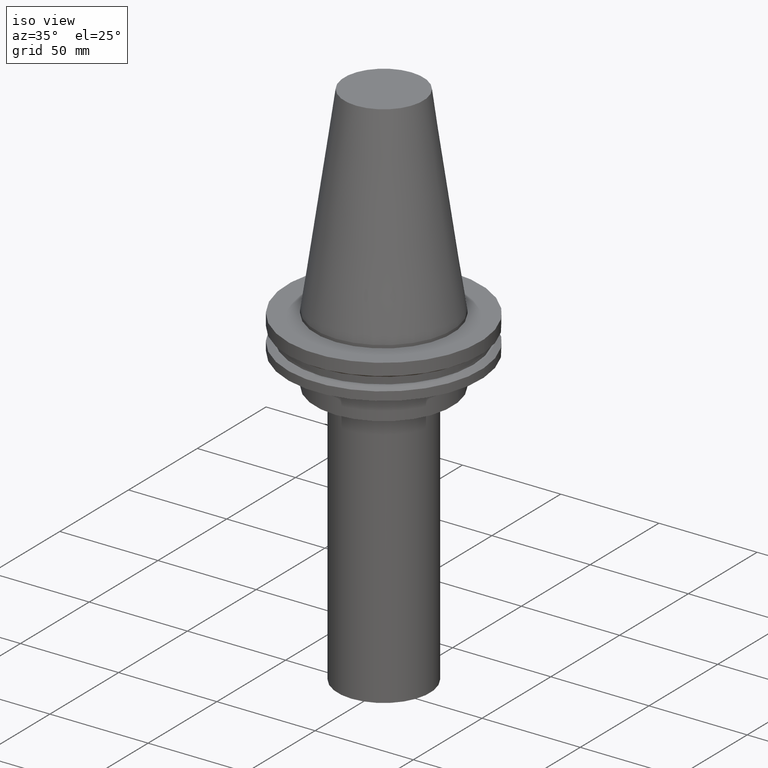
[diagram: clean part render]
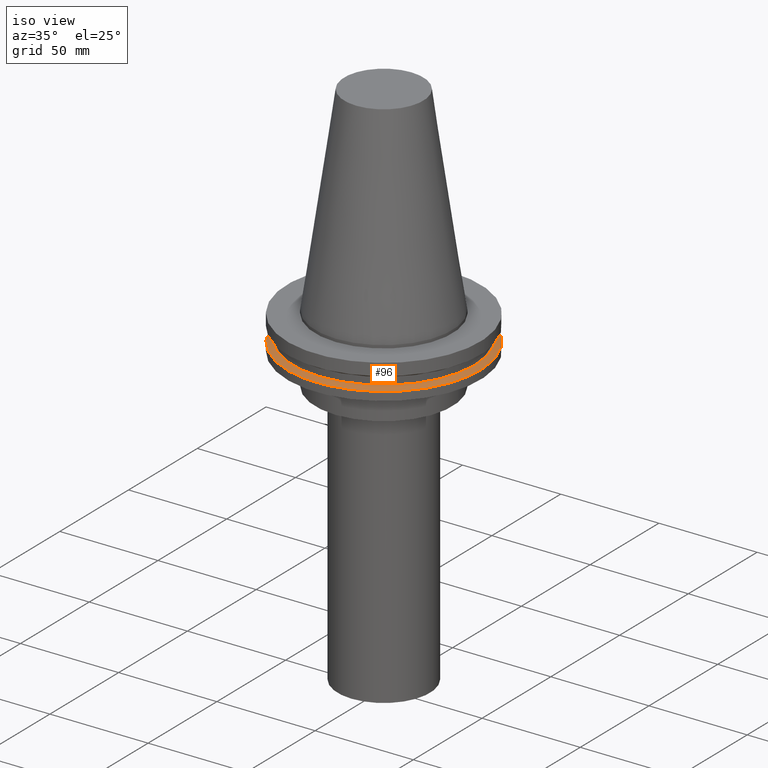
[diagram: same view with one face highlighted and labeled with its STEP entity id]
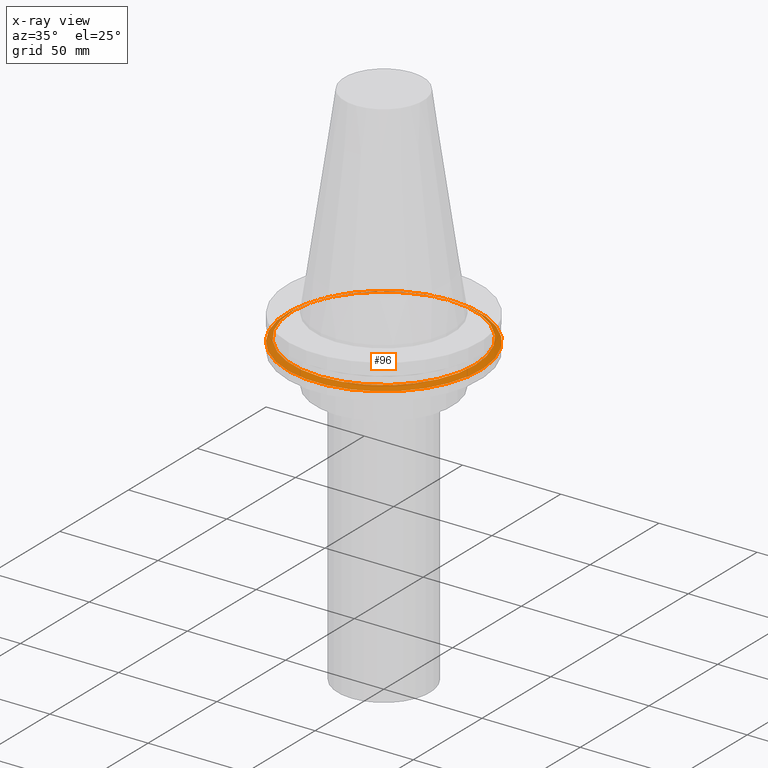
[diagram: x-ray of the same camera — body ghosted, the highlighted face saturated]
A machine part, iso view. The second image highlights one B-rep face of the part: STEP entity #96.
The next image is the same camera in x-ray: the body ghosted, the highlighted face saturated — about 3% of this face is hidden behind the body in this view.
In plain terms, the highlighted conical surface has half-angle 60 deg.
Its self-contained STEP definition (entity closure, byte-faithful):
#96=ADVANCED_FACE('Unnamed[1]',(#218,#219),#220,.T.);
#103=EDGE_CURVE('Unnamed[1]',#230,#230,#231,.T.);
#107=EDGE_CURVE('Unnamed[1]',#236,#236,#237,.T.);
#218=FACE_BOUND('',#372,.T.);
#219=FACE_BOUND('',#373,.T.);
#220=CONICAL_SURFACE('',#374,47.8225292269259,1.04719755119659);
#230=VERTEX_POINT('',#387);
#231=CIRCLE('',#388,49.2124999999999);
#236=VERTEX_POINT('',#395);
#237=CIRCLE('',#396,46.4325584538519);
#372=EDGE_LOOP('',(#531));
#373=EDGE_LOOP('',(#532));
#374=AXIS2_PLACEMENT_3D('',#533,#534,#535);
#387=CARTESIAN_POINT('',(8.96747618675648E-016,49.2124999999999,-14.645));
#388=AXIS2_PLACEMENT_3D('',#545,#546,#547);
#395=CARTESIAN_POINT('',(7.98469713044071E-016,46.4325584538519,-13.04));
#396=AXIS2_PLACEMENT_3D('',#551,#552,#553);
#531=ORIENTED_EDGE('',*,*,#103,.F.);
#532=ORIENTED_EDGE('',*,*,#107,.T.);
#533=CARTESIAN_POINT('',(8.47608665859862E-016,-1.21710721433363E-014,-13.8425));
#534=DIRECTION('',(6.12323399573677E-017,4.82717484294155E-016,-1.0));
#535=DIRECTION('',(-3.4385073832434E-032,1.0,4.82717484294155E-016));
#545=CARTESIAN_POINT('',(8.9674761867565E-016,-1.17836913621903E-014,-14.645));
#546=DIRECTION('',(6.12323399573676E-017,4.82717484294155E-016,-1.0));
#547=DIRECTION('',(-3.4385073832434E-032,1.0,4.82717484294155E-016));
#551=CARTESIAN_POINT('',(7.98469713044074E-016,-1.25584529244824E-014,-13.04));
#552=DIRECTION('',(6.12323399573677E-017,4.82717484294155E-016,-1.0));
#553=DIRECTION('',(-3.4385073832434E-032,1.0,4.82717484294155E-016));